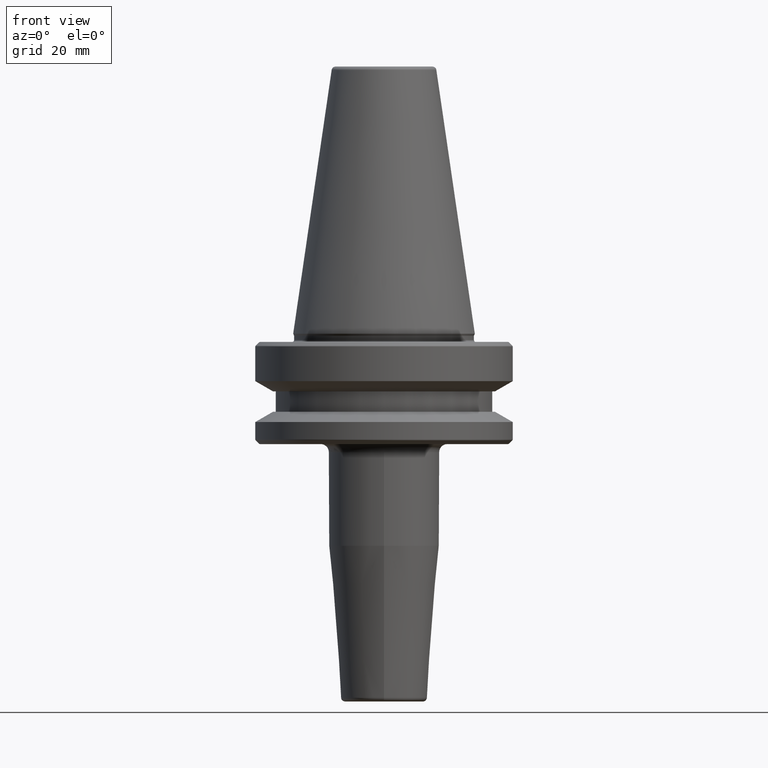
[diagram: clean part render]
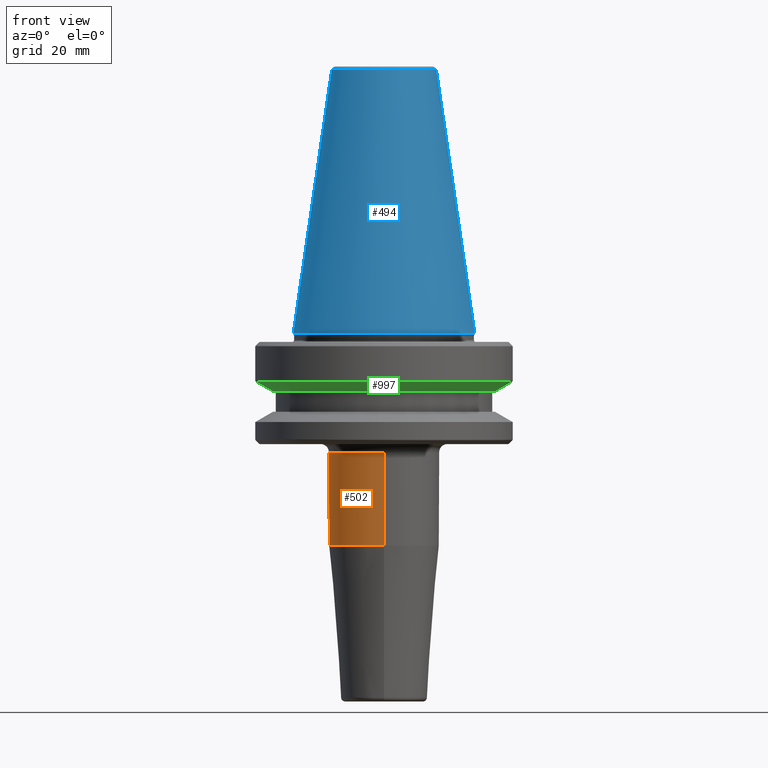
[diagram: same view with three faces highlighted in distinct colors, each labeled with its STEP entity id]
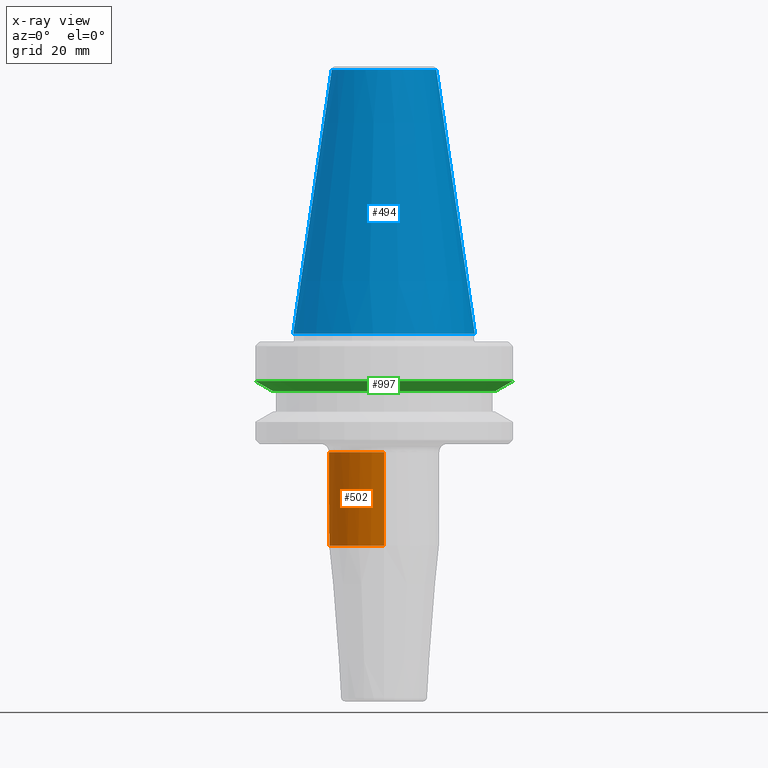
[diagram: x-ray of the same camera — body ghosted, the three highlighted faces saturated]
A machine part, front view with three faces highlighted in distinct colors.
The next image is the same camera in x-ray (body ghosted, the three faces saturated) — at least one of them is partly hidden behind the body in this view.
Their STEP definitions:

[orange] entity #502 — the highlighted cylindrical surface (partial cylindrical patch) has radius 13.5 mm, axis along (-0, 0, -1).
#42 = VERTEX_POINT ( 'NONE', #380 ) ;
#49 = LINE ( 'NONE', #1064, #779 ) ;
#50 = CARTESIAN_POINT ( 'NONE',  ( 0.0000000000000000000, 4.665321139608974800E-017, -29.00000000000000400 ) ) ;
#65 = CARTESIAN_POINT ( 'NONE',  ( 1.653273178848926700E-015, -13.49999999999999800, -29.00000000000000400 ) ) ;
#162 = DIRECTION ( 'NONE',  ( -1.000000000000000000, 0.0000000000000000000, 0.0000000000000000000 ) ) ;
#255 = LINE ( 'NONE', #1040, #930 ) ;
#256 = AXIS2_PLACEMENT_3D ( 'NONE', #865, #280, #965 ) ;
#262 = DIRECTION ( 'NONE',  ( -0.0000000000000000000, 2.332660569804487100E-017, -1.000000000000000000 ) ) ;
#280 = DIRECTION ( 'NONE',  ( 0.0000000000000000000, 0.0000000000000000000, -1.000000000000000000 ) ) ;
#307 = AXIS2_PLACEMENT_3D ( 'NONE', #50, #749, #162 ) ;
#314 = CARTESIAN_POINT ( 'NONE',  ( 0.0000000000000000000, 13.49999999999999800, -29.00000000000000400 ) ) ;
#323 = DIRECTION ( 'NONE',  ( -0.0000000000000000000, 2.332660569804487100E-017, -1.000000000000000000 ) ) ;
#339 = CYLINDRICAL_SURFACE ( 'NONE', #571, 13.49999999999999800 ) ;
#345 = EDGE_LOOP ( 'NONE', ( #1138, #1133, #1102, #669, #732 ) ) ;
#346 = DIRECTION ( 'NONE',  ( 0.0000000000000000000, 1.000000000000000000, 0.0000000000000000000 ) ) ;
#350 = CIRCLE ( 'NONE', #1161, 13.49999999999999800 ) ;
#357 = VERTEX_POINT ( 'NONE', #314 ) ;
#364 = CARTESIAN_POINT ( 'NONE',  ( 0.0000000000000000000, 1.469576158976826700E-015, -90.00000000000000000 ) ) ;
#380 = CARTESIAN_POINT ( 'NONE',  ( 1.653273178848926700E-015, 13.49999999999999800, -51.88138579147236800 ) ) ;
#492 = EDGE_CURVE ( 'NONE', #984, #357, #1121, .T. ) ;
#502 = ADVANCED_FACE ( 'NONE', ( #851 ), #339, .T. ) ;
#571 = AXIS2_PLACEMENT_3D ( 'NONE', #364, #262, #346 ) ;
#582 = VERTEX_POINT ( 'NONE', #65 ) ;
#669 = ORIENTED_EDGE ( 'NONE', *, *, #1033, .T. ) ;
#690 = CARTESIAN_POINT ( 'NONE',  ( 0.0000000000000000000, -13.49999999999999800, -51.88138579147236800 ) ) ;
#732 = ORIENTED_EDGE ( 'NONE', *, *, #971, .F. ) ;
#749 = DIRECTION ( 'NONE',  ( 0.0000000000000000000, 0.0000000000000000000, -1.000000000000000000 ) ) ;
#779 = VECTOR ( 'NONE', #1175, 1000.000000000000000 ) ;
#844 = DIRECTION ( 'NONE',  ( -0.0000000000000000000, 2.332660569804487100E-017, -1.000000000000000000 ) ) ;
#851 = FACE_OUTER_BOUND ( 'NONE', #345, .T. ) ;
#865 = CARTESIAN_POINT ( 'NONE',  ( 0.0000000000000000000, 4.665321139608974800E-017, -29.00000000000000400 ) ) ;
#905 = CARTESIAN_POINT ( 'NONE',  ( 0.0000000000000000000, 5.803982755786119600E-016, -51.88138579147236800 ) ) ;
#930 = VECTOR ( 'NONE', #844, 1000.000000000000000 ) ;
#965 = DIRECTION ( 'NONE',  ( -1.000000000000000000, 0.0000000000000000000, 0.0000000000000000000 ) ) ;
#971 = EDGE_CURVE ( 'NONE', #1208, #42, #350, .T. ) ;
#984 = VERTEX_POINT ( 'NONE', #1115 ) ;
#1010 = DIRECTION ( 'NONE',  ( 0.0000000000000000000, 1.000000000000000000, 0.0000000000000000000 ) ) ;
#1033 = EDGE_CURVE ( 'NONE', #357, #42, #255, .T. ) ;
#1040 = CARTESIAN_POINT ( 'NONE',  ( 0.0000000000000000000, 13.50000000000000000, -90.00000000000000000 ) ) ;
#1064 = CARTESIAN_POINT ( 'NONE',  ( 1.653273178848926700E-015, -13.49999999999999600, -90.00000000000000000 ) ) ;
#1102 = ORIENTED_EDGE ( 'NONE', *, *, #492, .T. ) ;
#1109 = CIRCLE ( 'NONE', #256, 13.49999999999999800 ) ;
#1115 = CARTESIAN_POINT ( 'NONE',  ( -13.49999999999999800, 4.665321139608974800E-017, -29.00000000000000400 ) ) ;
#1121 = CIRCLE ( 'NONE', #307, 13.49999999999999800 ) ;
#1133 = ORIENTED_EDGE ( 'NONE', *, *, #1142, .T. ) ;
#1138 = ORIENTED_EDGE ( 'NONE', *, *, #1149, .F. ) ;
#1142 = EDGE_CURVE ( 'NONE', #582, #984, #1109, .T. ) ;
#1149 = EDGE_CURVE ( 'NONE', #582, #1208, #49, .T. ) ;
#1161 = AXIS2_PLACEMENT_3D ( 'NONE', #905, #323, #1010 ) ;
#1175 = DIRECTION ( 'NONE',  ( -0.0000000000000000000, 2.332660569804487100E-017, -1.000000000000000000 ) ) ;
#1208 = VERTEX_POINT ( 'NONE', #690 ) ;

[blue] entity #494 — the highlighted conical surface has half-angle 8.297 deg.
#66 = CARTESIAN_POINT ( 'NONE',  ( 0.0000000000000000000, 0.0000000000000000000, 0.0000000000000000000 ) ) ;
#76 = DIRECTION ( 'NONE',  ( -0.0000000000000000000, -0.0000000000000000000, 1.000000000000000000 ) ) ;
#102 = FACE_OUTER_BOUND ( 'NONE', #680, .T. ) ;
#103 = ORIENTED_EDGE ( 'NONE', *, *, #599, .F. ) ;
#169 = CARTESIAN_POINT ( 'NONE',  ( -12.81219950706224800, 0.0000000000000000000, 64.54430822726730800 ) ) ;
#176 = EDGE_CURVE ( 'NONE', #936, #768, #268, .T. ) ;
#189 = CARTESIAN_POINT ( 'NONE',  ( 12.81219950706224800, 1.569041911636107800E-015, 64.54430822726730800 ) ) ;
#268 = CIRCLE ( 'NONE', #675, 22.22500000000000500 ) ;
#305 = CARTESIAN_POINT ( 'NONE',  ( 22.22500000000000500, 0.0000000000000000000, 0.0000000000000000000 ) ) ;
#317 = CARTESIAN_POINT ( 'NONE',  ( -22.22500000000000500, 2.721777511104993200E-015, 0.0000000000000000000 ) ) ;
#382 = AXIS2_PLACEMENT_3D ( 'NONE', #653, #937, #748 ) ;
#489 = CARTESIAN_POINT ( 'NONE',  ( 12.81219950706224800, 2.145409711370550300E-015, 64.54430822726730800 ) ) ;
#494 = ADVANCED_FACE ( 'NONE', ( #102 ), #565, .T. ) ;
#509 = EDGE_CURVE ( 'NONE', #1108, #936, #1088, .T. ) ;
#540 = CIRCLE ( 'NONE', #961, 12.81219950706224800 ) ;
#550 = VECTOR ( 'NONE', #1263, 1000.000000000000000 ) ;
#565 = CONICAL_SURFACE ( 'NONE', #382, 12.81219950706224800, 0.1448138465474191100 ) ;
#599 = EDGE_CURVE ( 'NONE', #1108, #1173, #540, .T. ) ;
#653 = CARTESIAN_POINT ( 'NONE',  ( 0.0000000000000000000, 0.0000000000000000000, 64.54430822726730800 ) ) ;
#674 = CARTESIAN_POINT ( 'NONE',  ( 0.0000000000000000000, 0.0000000000000000000, 64.54430822726730800 ) ) ;
#675 = AXIS2_PLACEMENT_3D ( 'NONE', #66, #677, #689 ) ;
#677 = DIRECTION ( 'NONE',  ( -0.0000000000000000000, -0.0000000000000000000, 1.000000000000000000 ) ) ;
#680 = EDGE_LOOP ( 'NONE', ( #1025, #103, #1080, #836 ) ) ;
#689 = DIRECTION ( 'NONE',  ( 1.000000000000000000, 0.0000000000000000000, 0.0000000000000000000 ) ) ;
#748 = DIRECTION ( 'NONE',  ( -1.000000000000000000, 0.0000000000000000000, 0.0000000000000000000 ) ) ;
#767 = DIRECTION ( 'NONE',  ( 1.000000000000000000, 0.0000000000000000000, 0.0000000000000000000 ) ) ;
#768 = VERTEX_POINT ( 'NONE', #305 ) ;
#808 = LINE ( 'NONE', #189, #550 ) ;
#822 = VECTOR ( 'NONE', #846, 1000.000000000000000 ) ;
#836 = ORIENTED_EDGE ( 'NONE', *, *, #176, .T. ) ;
#846 = DIRECTION ( 'NONE',  ( -0.1443082272673071000, 0.0000000000000000000, -0.9895327864921743500 ) ) ;
#936 = VERTEX_POINT ( 'NONE', #317 ) ;
#937 = DIRECTION ( 'NONE',  ( 0.0000000000000000000, 0.0000000000000000000, -1.000000000000000000 ) ) ;
#961 = AXIS2_PLACEMENT_3D ( 'NONE', #674, #76, #767 ) ;
#1025 = ORIENTED_EDGE ( 'NONE', *, *, #1117, .F. ) ;
#1080 = ORIENTED_EDGE ( 'NONE', *, *, #509, .T. ) ;
#1088 = LINE ( 'NONE', #169, #822 ) ;
#1108 = VERTEX_POINT ( 'NONE', #1163 ) ;
#1117 = EDGE_CURVE ( 'NONE', #1173, #768, #808, .T. ) ;
#1163 = CARTESIAN_POINT ( 'NONE',  ( -12.81219950706224800, 0.0000000000000000000, 64.54430822726730800 ) ) ;
#1173 = VERTEX_POINT ( 'NONE', #489 ) ;
#1263 = DIRECTION ( 'NONE',  ( 0.1443082272673071000, 1.767266086135364600E-017, -0.9895327864921743500 ) ) ;

[green] entity #997 — the highlighted conical surface has half-angle 60 deg.
#10 = CARTESIAN_POINT ( 'NONE',  ( 0.0000000000000000000, 0.0000000000000000000, -14.10000000000000100 ) ) ;
#139 = CARTESIAN_POINT ( 'NONE',  ( -31.50000000000000000, 3.857637417314162700E-015, -11.59985799368323700 ) ) ;
#221 = EDGE_CURVE ( 'NONE', #352, #1018, #952, .T. ) ;
#231 = ORIENTED_EDGE ( 'NONE', *, *, #329, .F. ) ;
#246 = AXIS2_PLACEMENT_3D ( 'NONE', #462, #1140, #551 ) ;
#281 = FACE_OUTER_BOUND ( 'NONE', #1267, .T. ) ;
#329 = EDGE_CURVE ( 'NONE', #811, #948, #348, .T. ) ;
#348 = LINE ( 'NONE', #139, #1098 ) ;
#352 = VERTEX_POINT ( 'NONE', #1111 ) ;
#440 = CARTESIAN_POINT ( 'NONE',  ( 0.0000000000000000000, 0.0000000000000000000, -11.59985799368323700 ) ) ;
#461 = CIRCLE ( 'NONE', #490, 27.16962701892216000 ) ;
#462 = CARTESIAN_POINT ( 'NONE',  ( 0.0000000000000000000, 0.0000000000000000000, -11.59985799368323700 ) ) ;
#483 = EDGE_CURVE ( 'NONE', #948, #1018, #631, .T. ) ;
#490 = AXIS2_PLACEMENT_3D ( 'NONE', #10, #596, #609 ) ;
#504 = DIRECTION ( 'NONE',  ( -0.8660254037844393700, 1.060575238724907800E-016, 0.4999999999999985000 ) ) ;
#551 = DIRECTION ( 'NONE',  ( 1.000000000000000000, 0.0000000000000000000, 0.0000000000000000000 ) ) ;
#566 = ORIENTED_EDGE ( 'NONE', *, *, #731, .T. ) ;
#596 = DIRECTION ( 'NONE',  ( -0.0000000000000000000, -0.0000000000000000000, 1.000000000000000000 ) ) ;
#609 = DIRECTION ( 'NONE',  ( 1.000000000000000000, 0.0000000000000000000, 0.0000000000000000000 ) ) ;
#614 = CARTESIAN_POINT ( 'NONE',  ( -27.16962701892216000, 3.592478546794604700E-015, -14.10000000000000100 ) ) ;
#631 = CIRCLE ( 'NONE', #246, 31.50000000000000000 ) ;
#634 = DIRECTION ( 'NONE',  ( 0.8660254037844393700, 0.0000000000000000000, 0.4999999999999985000 ) ) ;
#657 = ORIENTED_EDGE ( 'NONE', *, *, #221, .T. ) ;
#661 = DIRECTION ( 'NONE',  ( 1.000000000000000000, 0.0000000000000000000, 0.0000000000000000000 ) ) ;
#676 = AXIS2_PLACEMENT_3D ( 'NONE', #440, #1022, #661 ) ;
#731 = EDGE_CURVE ( 'NONE', #811, #352, #461, .T. ) ;
#811 = VERTEX_POINT ( 'NONE', #614 ) ;
#834 = CARTESIAN_POINT ( 'NONE',  ( 31.50000000000000000, 0.0000000000000000000, -11.59985799368323700 ) ) ;
#866 = ORIENTED_EDGE ( 'NONE', *, *, #483, .F. ) ;
#932 = CONICAL_SURFACE ( 'NONE', #676, 31.50000000000000000, 1.047197551196599400 ) ;
#948 = VERTEX_POINT ( 'NONE', #1110 ) ;
#952 = LINE ( 'NONE', #834, #1230 ) ;
#997 = ADVANCED_FACE ( 'NONE', ( #281 ), #932, .T. ) ;
#1018 = VERTEX_POINT ( 'NONE', #1236 ) ;
#1022 = DIRECTION ( 'NONE',  ( -0.0000000000000000000, -0.0000000000000000000, 1.000000000000000000 ) ) ;
#1098 = VECTOR ( 'NONE', #504, 1000.000000000000100 ) ;
#1110 = CARTESIAN_POINT ( 'NONE',  ( -31.50000000000000000, 3.857637417314162700E-015, -11.59985799368323700 ) ) ;
#1111 = CARTESIAN_POINT ( 'NONE',  ( 27.16962701892216000, 0.0000000000000000000, -14.10000000000000100 ) ) ;
#1140 = DIRECTION ( 'NONE',  ( -0.0000000000000000000, -0.0000000000000000000, 1.000000000000000000 ) ) ;
#1230 = VECTOR ( 'NONE', #634, 1000.000000000000100 ) ;
#1236 = CARTESIAN_POINT ( 'NONE',  ( 31.50000000000000000, 0.0000000000000000000, -11.59985799368323700 ) ) ;
#1267 = EDGE_LOOP ( 'NONE', ( #231, #566, #657, #866 ) ) ;